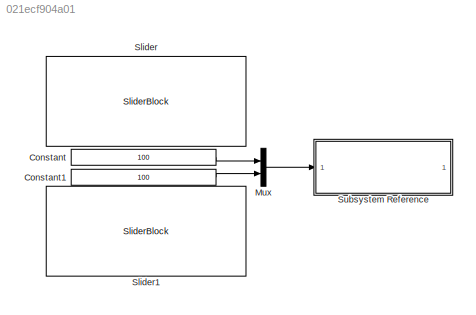
MODEL slx_021ecf904a01
KIND model
CONFIG AbsTol = auto
CONFIG EnableMultiTasking = on
CONFIG FixedStep = auto
CONFIG MaxStep = auto
CONFIG MinStep = auto
CONFIG RelTol = 1e-3
CONFIG SampleTimeConstraint = Unconstrained
CONFIG SolverName = FixedStepAuto
CONFIG StartTime = 0.0
CONFIG StopTime = inf
BLOCK [Constant] Constant
  Value = 100
BLOCK [Constant] Constant1
  Value = 100
BLOCK [Mux] Mux
  DisplayOption = bar
  Inputs = 2
BLOCK [SliderBlock] Slider
  LabelPosition = Hide
  ScaleMax = 255
  ScaleMin = -255
BLOCK [SliderBlock] Slider1
  LabelPosition = Hide
  ScaleMax = 255
  ScaleMin = -255
BLOCK [SubSystem] Subsystem Reference
  ReferencedSubsystem = Sub_Motores
LINE Constant1:1 -> Mux:2
LINE Constant:1 -> Mux:1
LINE Mux:1 -> Subsystem Reference:1
